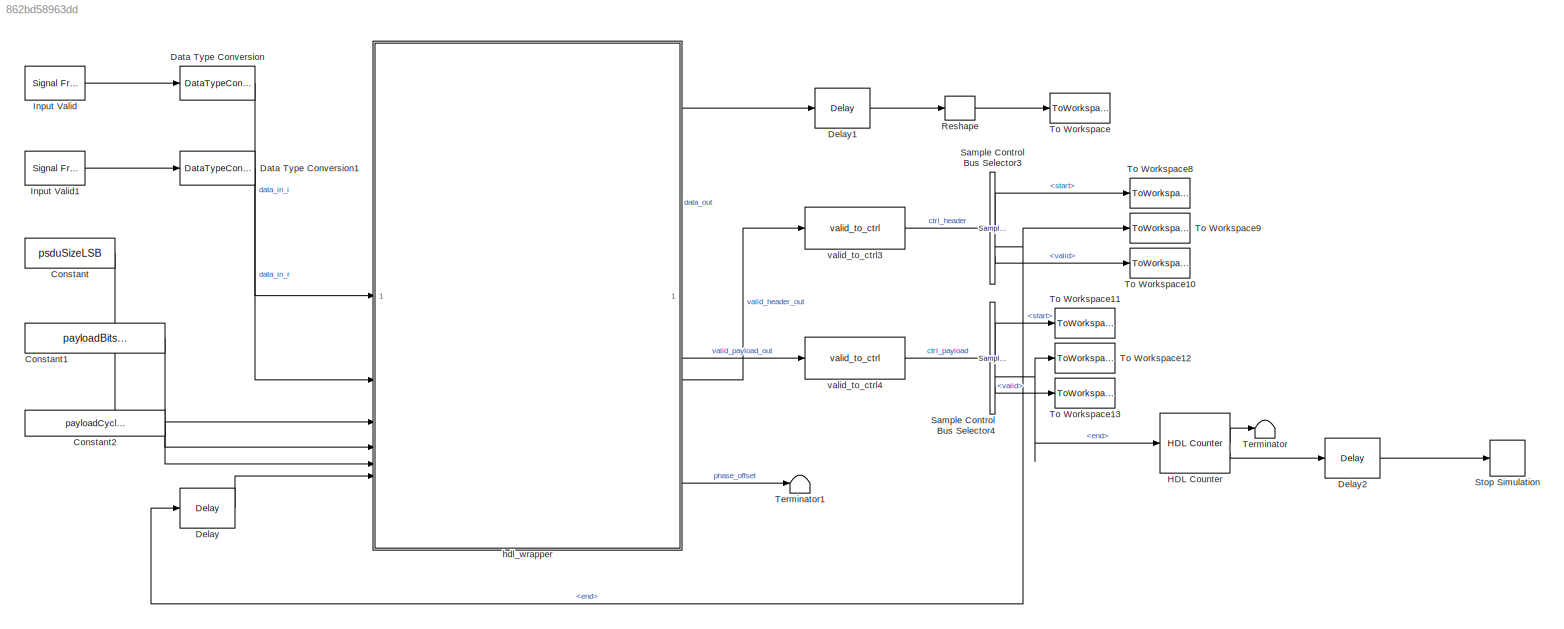
MODEL slx_862bd58963dd
KIND model
CONFIG AbsTol = auto
CONFIG EnableMultiTasking = off
CONFIG FixedStep = auto
CONFIG MaxStep = auto
CONFIG MinStep = auto
CONFIG RelTol = 1e-3
CONFIG SampleTimeConstraint = Unconstrained
CONFIG SolverName = FixedStepDiscrete
CONFIG StartTime = 0.0
CONFIG StopTime = stopTime
BLOCK [Constant] Constant
  OutDataTypeStr = boolean
  SampleTime = -1
  Value = psduSizeLSB
BLOCK [Constant] Constant1
  OutDataTypeStr = uint8
  SampleTime = -1
  Value = payloadBitsPerSubcarrierIn
BLOCK [Constant] Constant2
  OutDataTypeStr = uint8
  SampleTime = -1
  Value = payloadCyclicPrefixLenIn
BLOCK [DataTypeConversion] Data Type Conversion
  OutDataTypeStr = CONST.rxDecimatorOutputDataType
  RndMeth = Floor
  SaturateOnIntegerOverflow = off
BLOCK [DataTypeConversion] Data Type Conversion1
  OutDataTypeStr = CONST.rxDecimatorOutputDataType
  RndMeth = Floor
  SaturateOnIntegerOverflow = off
BLOCK [Delay] Delay
  DelayLength = 100
  InitialCondition = 0
  InputPortMap = u0
  UseCircularBuffer = on
  UserDataPersistent = on
BLOCK [Delay] Delay1
  DelayLength = 1
  InitialCondition = 0
  InputPortMap = u0
  UseCircularBuffer = on
  UserDataPersistent = on
BLOCK [Delay] Delay2
  DelayLength = 500
  InitialCondition = 0
  InputPortMap = u0
  UseCircularBuffer = on
  UserDataPersistent = on
BLOCK [Reference] HDL Counter  REF=hdlsllib/Sources/HDL Counter
  SourceBlock = hdlsllib/Sources/HDL Counter
  SourceType = HDL Counter
BLOCK [Reference] Input Valid  REF=dspsrcs4/Signal From
Workspace
  SourceBlock = dspsrcs4/Signal From\nWorkspace
  SourceType = Signal From Workspace
BLOCK [Reference] Input Valid1  REF=dspsrcs4/Signal From
Workspace
  SourceBlock = dspsrcs4/Signal From\nWorkspace
  SourceType = Signal From Workspace
BLOCK [Reshape] Reshape
BLOCK [Reference] Sample Control Bus Selector3  REF=whdlutilities/Sample Control
Bus Selector
  SourceBlock = whdlutilities/Sample Control\nBus Selector
BLOCK [Reference] Sample Control Bus Selector4  REF=whdlutilities/Sample Control
Bus Selector
  SourceBlock = whdlutilities/Sample Control\nBus Selector
BLOCK [Stop] Stop Simulation
BLOCK [Terminator] Terminator
BLOCK [Terminator] Terminator1
BLOCK [ToWorkspace] To Workspace
  MaxDataPoints = inf
  SampleTime = 1/CONST.fPHY
  Save2DSignal = 2-D array (concatenate along first dimension)
  VariableName = dataOut
BLOCK [ToWorkspace] To Workspace10
  MaxDataPoints = inf
  SampleTime = 1/CONST.fPHY
  Save2DSignal = 2-D array (concatenate along first dimension)
  VariableName = validOut
BLOCK [ToWorkspace] To Workspace11
  MaxDataPoints = inf
  SampleTime = 1/CONST.fPHY
  Save2DSignal = 2-D array (concatenate along first dimension)
  VariableName = startOut1
BLOCK [ToWorkspace] To Workspace12
  MaxDataPoints = inf
  SampleTime = 1/CONST.fPHY
  Save2DSignal = 2-D array (concatenate along first dimension)
  VariableName = endOut1
BLOCK [ToWorkspace] To Workspace13
  MaxDataPoints = inf
  SampleTime = 1/CONST.fPHY
  Save2DSignal = 2-D array (concatenate along first dimension)
  VariableName = validOut1
BLOCK [ToWorkspace] To Workspace8
  MaxDataPoints = inf
  SampleTime = 1/CONST.fPHY
  Save2DSignal = 2-D array (concatenate along first dimension)
  VariableName = startOut
BLOCK [ToWorkspace] To Workspace9
  MaxDataPoints = inf
  SampleTime = 1/CONST.fPHY
  Save2DSignal = 2-D array (concatenate along first dimension)
  VariableName = endOut
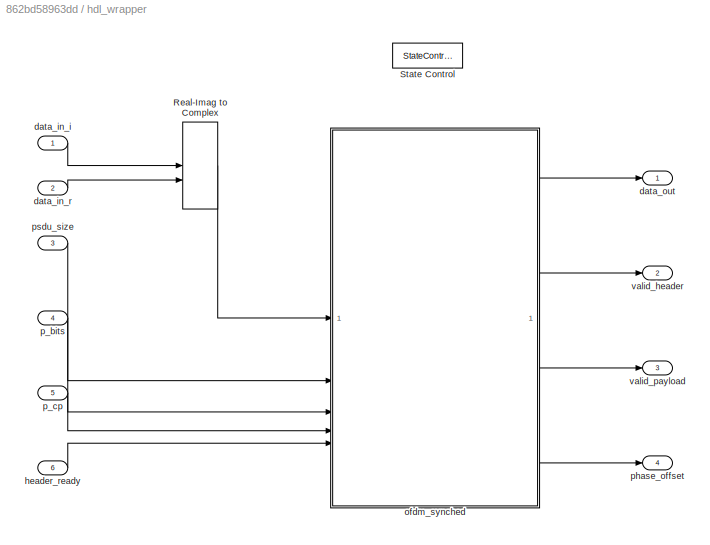
BLOCK [SubSystem] hdl_wrapper
  TreatAsAtomicUnit = on
BLOCK [RealImagToComplex] hdl_wrapper/Real-Imag to Complex
BLOCK [StateControl] hdl_wrapper/State Control
  StateControl = Synchronous
BLOCK [Inport] hdl_wrapper/data_in_i
BLOCK [Inport] hdl_wrapper/data_in_r
  Port = 2
BLOCK [Outport] hdl_wrapper/data_out
  VectorParamsAs1DForOutWhenUnconnected = off
BLOCK [Inport] hdl_wrapper/header_ready
  Port = 6
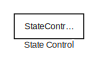
[diagram: hdl_wrapper/ofdm_synched - part 1/6, top center region]
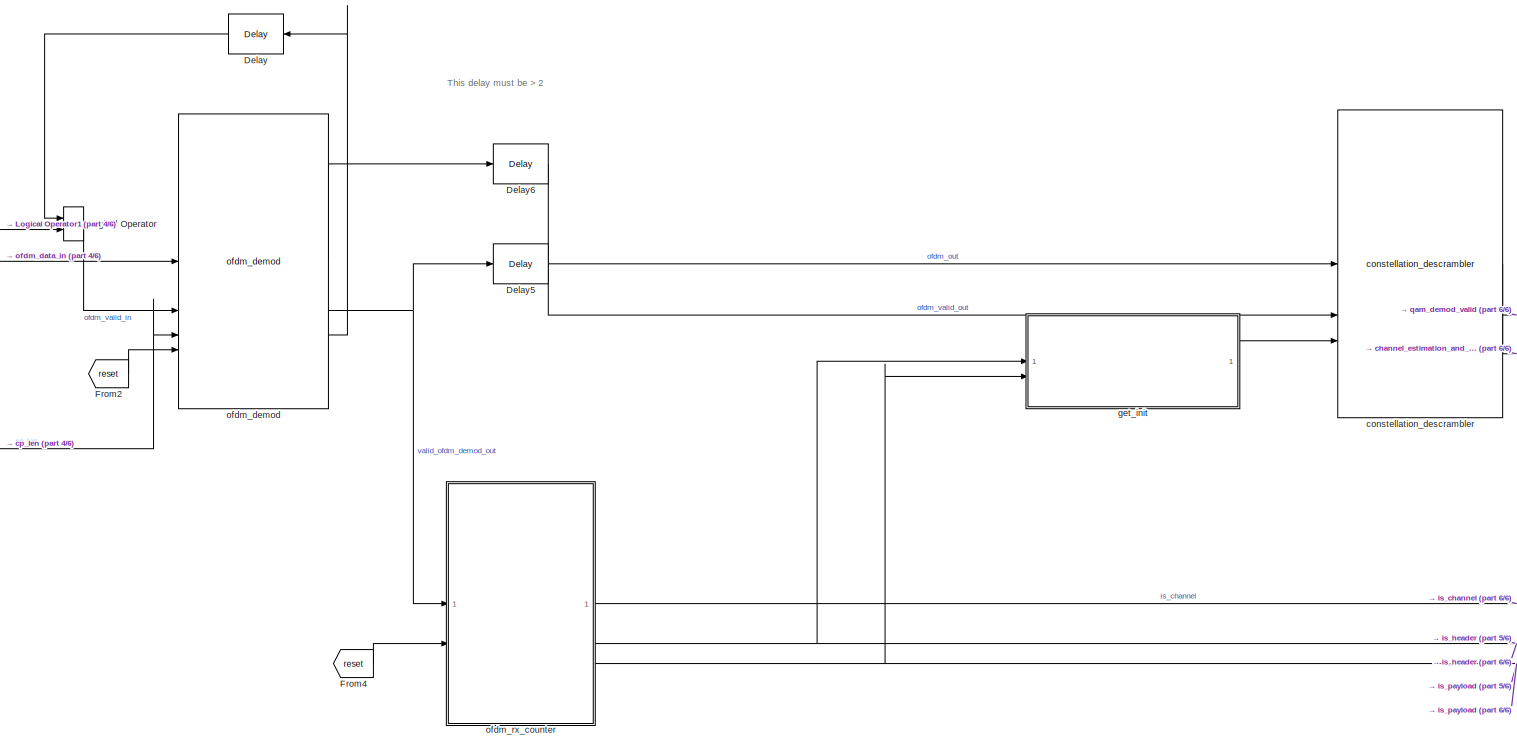
[diagram: hdl_wrapper/ofdm_synched - part 2/6, center side, full height]
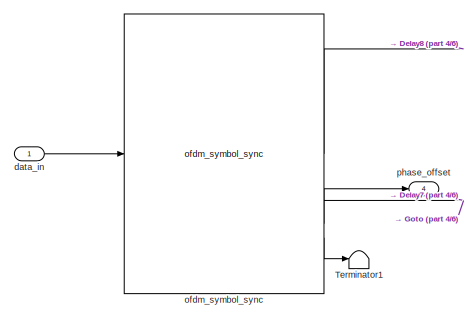
[diagram: hdl_wrapper/ofdm_synched - part 3/6, middle left region]
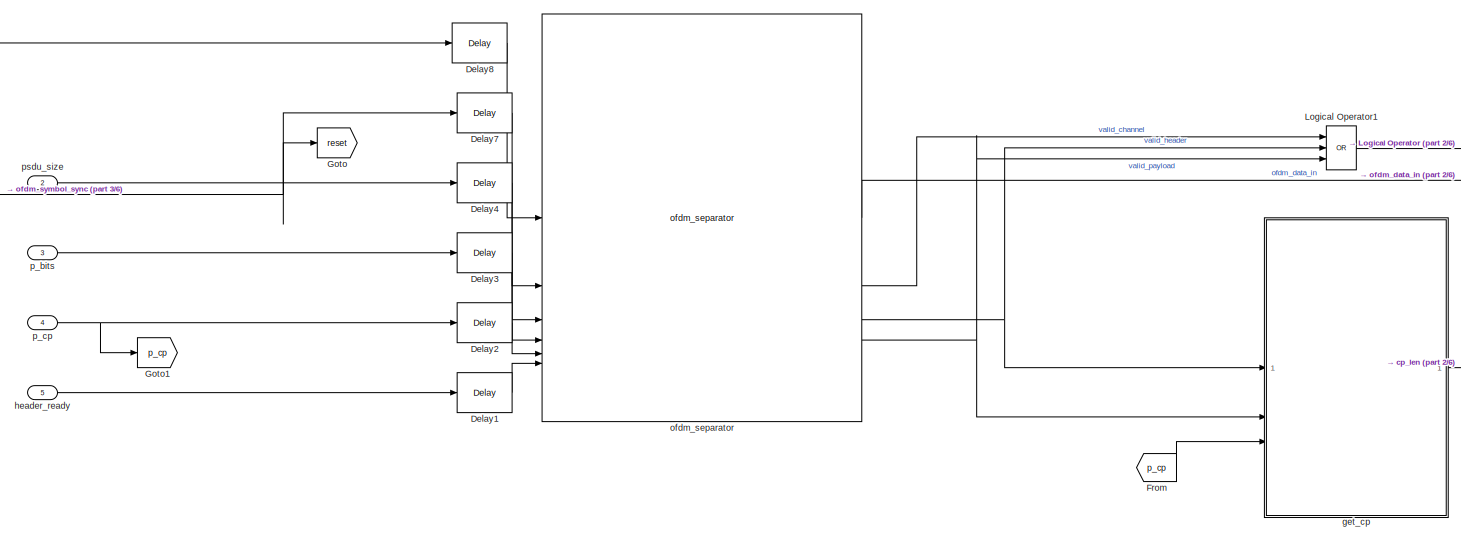
[diagram: hdl_wrapper/ofdm_synched - part 4/6, middle left region]
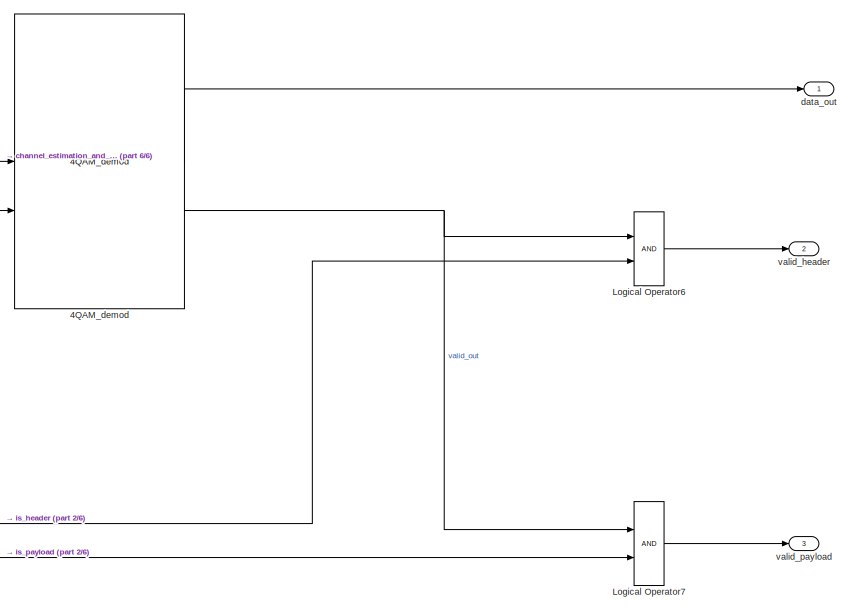
[diagram: hdl_wrapper/ofdm_synched - part 5/6, right side, full height]
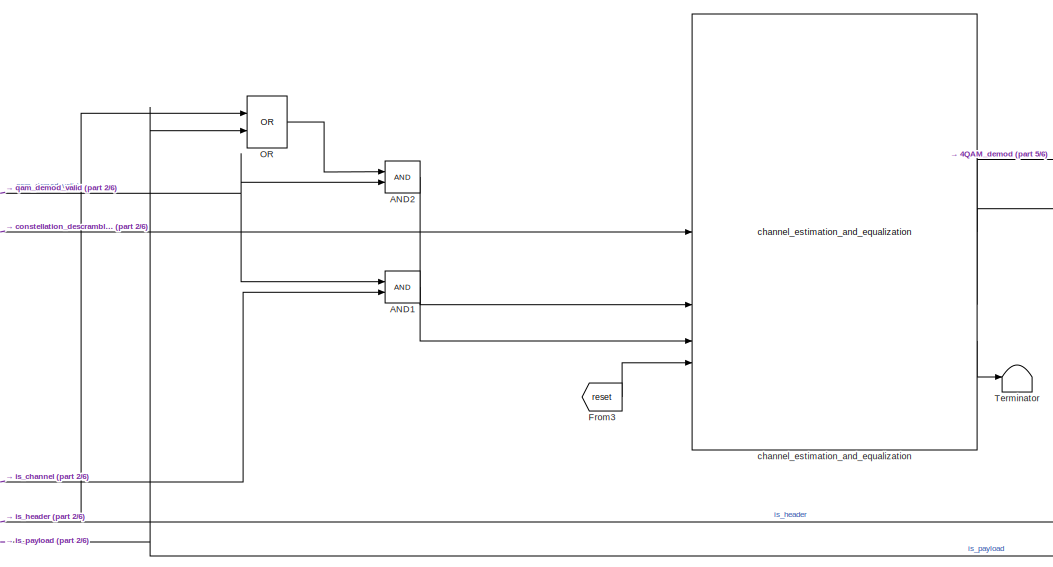
[diagram: hdl_wrapper/ofdm_synched - part 6/6, middle right region]
BLOCK [SubSystem] hdl_wrapper/ofdm_synched
BLOCK [Reference] hdl_wrapper/ofdm_synched/4QAM_demod  REF=HDL_ieee_8021513/4QAM_demod
  SourceBlock = HDL_ieee_8021513/4QAM_demod
  SourceProductName = HDL IEEE 8021513
  SourceType = SubSystem
BLOCK [Logic] hdl_wrapper/ofdm_synched/AND1
  AllPortsSameDT = off
  IconShape = distinctive
  OutDataTypeStr = boolean
BLOCK [Logic] hdl_wrapper/ofdm_synched/AND2
  AllPortsSameDT = off
  IconShape = distinctive
  NameLocation = left
  OutDataTypeStr = boolean
BLOCK [Delay] hdl_wrapper/ofdm_synched/Delay
  DelayLength = 1
  InitialCondition = 0
  InputPortMap = u0
  NameLocation = top
  UseCircularBuffer = on
  UserDataPersistent = on
BLOCK [Delay] hdl_wrapper/ofdm_synched/Delay1
  DelayLength = 1
  InitialCondition = 0
  InputPortMap = u0
  UseCircularBuffer = on
  UserDataPersistent = on
BLOCK [Delay] hdl_wrapper/ofdm_synched/Delay2
  DelayLength = 1
  InitialCondition = 0
  InputPortMap = u0
  UseCircularBuffer = on
  UserDataPersistent = on
BLOCK [Delay] hdl_wrapper/ofdm_synched/Delay3
  DelayLength = 1
  InitialCondition = 0
  InputPortMap = u0
  UseCircularBuffer = on
  UserDataPersistent = on
BLOCK [Delay] hdl_wrapper/ofdm_synched/Delay4
  DelayLength = 1
  InitialCondition = 0
  InputPortMap = u0
  UseCircularBuffer = on
  UserDataPersistent = on
BLOCK [Delay] hdl_wrapper/ofdm_synched/Delay5
  DelayLength = 5
  InitialCondition = 0
  InputPortMap = u0
  UseCircularBuffer = on
  UserDataPersistent = on
BLOCK [Delay] hdl_wrapper/ofdm_synched/Delay6
  DelayLength = 5
  InitialCondition = 0
  InputPortMap = u0
  UseCircularBuffer = on
  UserDataPersistent = on
BLOCK [Delay] hdl_wrapper/ofdm_synched/Delay7
  DelayLength = 1
  InitialCondition = 0
  InputPortMap = u0
  UseCircularBuffer = on
  UserDataPersistent = on
BLOCK [Delay] hdl_wrapper/ofdm_synched/Delay8
  DelayLength = 1
  InitialCondition = 0
  InputPortMap = u0
  UseCircularBuffer = on
  UserDataPersistent = on
BLOCK [From] hdl_wrapper/ofdm_synched/From
  GotoTag = p_cp
BLOCK [From] hdl_wrapper/ofdm_synched/From2
  GotoTag = reset
BLOCK [From] hdl_wrapper/ofdm_synched/From3
  GotoTag = reset
BLOCK [From] hdl_wrapper/ofdm_synched/From4
  GotoTag = reset
BLOCK [Goto] hdl_wrapper/ofdm_synched/Goto
  GotoTag = reset
BLOCK [Goto] hdl_wrapper/ofdm_synched/Goto1
  GotoTag = p_cp
BLOCK [Logic] hdl_wrapper/ofdm_synched/Logical Operator
  AllPortsSameDT = off
  IconShape = distinctive
  OutDataTypeStr = boolean
BLOCK [Logic] hdl_wrapper/ofdm_synched/Logical Operator1
  AllPortsSameDT = off
  IconShape = distinctive
  Inputs = 3
  Operator = OR
  OutDataTypeStr = boolean
BLOCK [Logic] hdl_wrapper/ofdm_synched/Logical Operator6
  AllPortsSameDT = off
  IconShape = distinctive
  OutDataTypeStr = boolean
BLOCK [Logic] hdl_wrapper/ofdm_synched/Logical Operator7
  AllPortsSameDT = off
  IconShape = distinctive
  OutDataTypeStr = boolean
BLOCK [Logic] hdl_wrapper/ofdm_synched/OR
  AllPortsSameDT = off
  IconShape = distinctive
  Operator = OR
  OutDataTypeStr = boolean
BLOCK [StateControl] hdl_wrapper/ofdm_synched/State Control
  StateControl = Synchronous
BLOCK [Terminator] hdl_wrapper/ofdm_synched/Terminator
BLOCK [Terminator] hdl_wrapper/ofdm_synched/Terminator1
BLOCK [Reference] hdl_wrapper/ofdm_synched/channel_estimation_and_equalization  REF=HDL_ieee_8021513/channel_estimation_and_equalization
  SourceBlock = HDL_ieee_8021513/channel_estimation_and_equalization
  SourceProductName = HDL IEEE 8021513
  SourceType = SubSystem
BLOCK [Reference] hdl_wrapper/ofdm_synched/constellation_descrambler  REF=HDL_ieee_8021513/constellation_descrambler
  SourceBlock = HDL_ieee_8021513/constellation_descrambler
  SourceProductName = HDL IEEE 8021513
  SourceType = SubSystem
BLOCK [Inport] hdl_wrapper/ofdm_synched/data_in
BLOCK [Outport] hdl_wrapper/ofdm_synched/data_out
  VectorParamsAs1DForOutWhenUnconnected = off
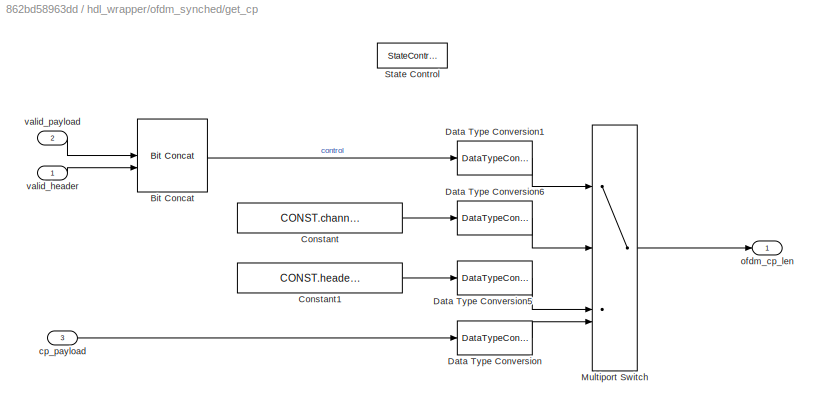
BLOCK [SubSystem] hdl_wrapper/ofdm_synched/get_cp
BLOCK [Reference] hdl_wrapper/ofdm_synched/get_cp/Bit Concat  REF=hdlsllib/Logic and Bit
Operations/Bit Concat
  SourceBlock = hdlsllib/Logic and Bit\nOperations/Bit Concat
  SourceType = Bit Concat
BLOCK [Constant] hdl_wrapper/ofdm_synched/get_cp/Constant
  OutDataTypeStr = uint8
  SampleTime = -1
  Value = CONST.channelCyclicPrefixLen
BLOCK [Constant] hdl_wrapper/ofdm_synched/get_cp/Constant1
  OutDataTypeStr = uint8
  SampleTime = -1
  Value = CONST.headerCyclicPrefixLen
BLOCK [DataTypeConversion] hdl_wrapper/ofdm_synched/get_cp/Data Type Conversion
  OutDataTypeStr = uint8
  RndMeth = Floor
  SaturateOnIntegerOverflow = off
BLOCK [DataTypeConversion] hdl_wrapper/ofdm_synched/get_cp/Data Type Conversion1
  OutDataTypeStr = fixdt(0,2,0)
  RndMeth = Floor
  SaturateOnIntegerOverflow = off
BLOCK [DataTypeConversion] hdl_wrapper/ofdm_synched/get_cp/Data Type Conversion5
  OutDataTypeStr = uint8
  RndMeth = Floor
  SaturateOnIntegerOverflow = off
BLOCK [DataTypeConversion] hdl_wrapper/ofdm_synched/get_cp/Data Type Conversion6
  OutDataTypeStr = uint8
  RndMeth = Floor
  SaturateOnIntegerOverflow = off
BLOCK [MultiPortSwitch] hdl_wrapper/ofdm_synched/get_cp/Multiport Switch
  DataPortOrder = Zero-based contiguous
  SaturateOnIntegerOverflow = off
  zeroidx = on
BLOCK [StateControl] hdl_wrapper/ofdm_synched/get_cp/State Control
  StateControl = Synchronous
BLOCK [Inport] hdl_wrapper/ofdm_synched/get_cp/cp_payload
  Port = 3
BLOCK [Outport] hdl_wrapper/ofdm_synched/get_cp/ofdm_cp_len
BLOCK [Inport] hdl_wrapper/ofdm_synched/get_cp/valid_header
BLOCK [Inport] hdl_wrapper/ofdm_synched/get_cp/valid_payload
  Port = 2
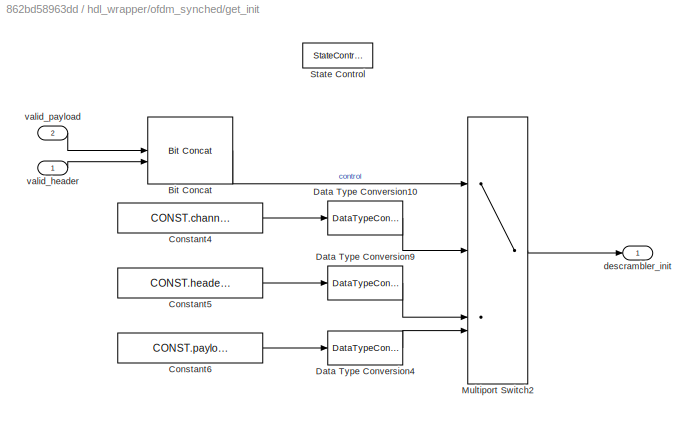
BLOCK [SubSystem] hdl_wrapper/ofdm_synched/get_init
BLOCK [Reference] hdl_wrapper/ofdm_synched/get_init/Bit Concat  REF=hdlsllib/Logic and Bit
Operations/Bit Concat
  SourceBlock = hdlsllib/Logic and Bit\nOperations/Bit Concat
  SourceType = Bit Concat
BLOCK [Constant] hdl_wrapper/ofdm_synched/get_init/Constant4
  OutDataTypeStr = uint8
  SampleTime = -1
  Value = CONST.channelScramblerInit
BLOCK [Constant] hdl_wrapper/ofdm_synched/get_init/Constant5
  OutDataTypeStr = uint8
  SampleTime = -1
  Value = CONST.headerScramblerInit
BLOCK [Constant] hdl_wrapper/ofdm_synched/get_init/Constant6
  OutDataTypeStr = uint8
  SampleTime = -1
  Value = CONST.payloadScramblerInit
BLOCK [DataTypeConversion] hdl_wrapper/ofdm_synched/get_init/Data Type Conversion10
  OutDataTypeStr = boolean
  RndMeth = Floor
  SaturateOnIntegerOverflow = off
BLOCK [DataTypeConversion] hdl_wrapper/ofdm_synched/get_init/Data Type Conversion4
  OutDataTypeStr = boolean
  RndMeth = Floor
  SaturateOnIntegerOverflow = off
BLOCK [DataTypeConversion] hdl_wrapper/ofdm_synched/get_init/Data Type Conversion9
  OutDataTypeStr = boolean
  RndMeth = Floor
  SaturateOnIntegerOverflow = off
BLOCK [MultiPortSwitch] hdl_wrapper/ofdm_synched/get_init/Multiport Switch2
  DataPortOrder = Zero-based contiguous
  InputSameDT = off
  SaturateOnIntegerOverflow = off
  zeroidx = on
BLOCK [StateControl] hdl_wrapper/ofdm_synched/get_init/State Control
  StateControl = Synchronous
BLOCK [Outport] hdl_wrapper/ofdm_synched/get_init/descrambler_init
BLOCK [Inport] hdl_wrapper/ofdm_synched/get_init/valid_header
BLOCK [Inport] hdl_wrapper/ofdm_synched/get_init/valid_payload
  Port = 2
BLOCK [Inport] hdl_wrapper/ofdm_synched/header_ready
  Port = 5
BLOCK [Reference] hdl_wrapper/ofdm_synched/ofdm_demod  REF=HDL_ieee_8021513/ofdm_demod
  SourceBlock = HDL_ieee_8021513/ofdm_demod
  SourceProductName = HDL IEEE 8021513
  SourceType = SubSystem
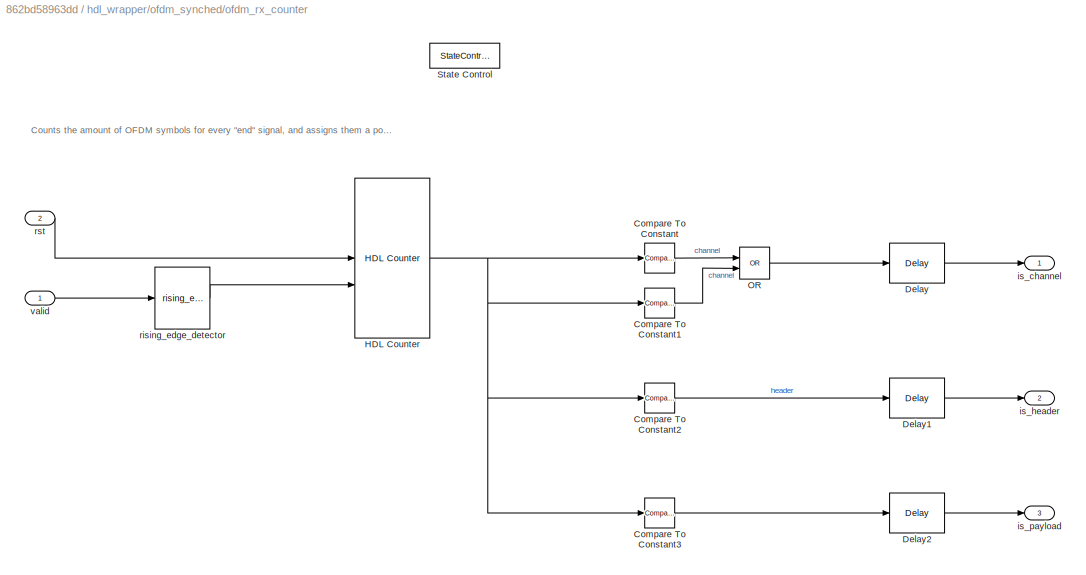
BLOCK [SubSystem] hdl_wrapper/ofdm_synched/ofdm_rx_counter
BLOCK [Reference] hdl_wrapper/ofdm_synched/ofdm_rx_counter/Compare To Constant  REF=hdlsllib/Logic and Bit
Operations/Compare
To Constant
  SourceBlock = hdlsllib/Logic and Bit\nOperations/Compare\nTo Constant
  SourceType = Compare To Constant
BLOCK [Reference] hdl_wrapper/ofdm_synched/ofdm_rx_counter/Compare To Constant1  REF=hdlsllib/Logic and Bit
Operations/Compare
To Constant
  SourceBlock = hdlsllib/Logic and Bit\nOperations/Compare\nTo Constant
  SourceType = Compare To Constant
BLOCK [Reference] hdl_wrapper/ofdm_synched/ofdm_rx_counter/Compare To Constant2  REF=hdlsllib/Logic and Bit
Operations/Compare
To Constant
  SourceBlock = hdlsllib/Logic and Bit\nOperations/Compare\nTo Constant
  SourceType = Compare To Constant
BLOCK [Reference] hdl_wrapper/ofdm_synched/ofdm_rx_counter/Compare To Constant3  REF=hdlsllib/Logic and Bit
Operations/Compare
To Constant
  SourceBlock = hdlsllib/Logic and Bit\nOperations/Compare\nTo Constant
  SourceType = Compare To Constant
BLOCK [Delay] hdl_wrapper/ofdm_synched/ofdm_rx_counter/Delay
  DelayLength = 1
  InitialCondition = 0
  InputPortMap = u0
  UseCircularBuffer = on
  UserDataPersistent = on
BLOCK [Delay] hdl_wrapper/ofdm_synched/ofdm_rx_counter/Delay1
  DelayLength = 1
  InitialCondition = 0
  InputPortMap = u0
  UseCircularBuffer = on
  UserDataPersistent = on
BLOCK [Delay] hdl_wrapper/ofdm_synched/ofdm_rx_counter/Delay2
  DelayLength = 1
  InitialCondition = 0
  InputPortMap = u0
  UseCircularBuffer = on
  UserDataPersistent = on
BLOCK [Reference] hdl_wrapper/ofdm_synched/ofdm_rx_counter/HDL Counter  REF=hdlsllib/Sources/HDL Counter
  SourceBlock = hdlsllib/Sources/HDL Counter
  SourceType = HDL Counter
BLOCK [Logic] hdl_wrapper/ofdm_synched/ofdm_rx_counter/OR
  AllPortsSameDT = off
  IconShape = distinctive
  Operator = OR
  OutDataTypeStr = boolean
BLOCK [StateControl] hdl_wrapper/ofdm_synched/ofdm_rx_counter/State Control
  StateControl = Synchronous
BLOCK [Outport] hdl_wrapper/ofdm_synched/ofdm_rx_counter/is_channel
BLOCK [Outport] hdl_wrapper/ofdm_synched/ofdm_rx_counter/is_header
  Port = 2
BLOCK [Outport] hdl_wrapper/ofdm_synched/ofdm_rx_counter/is_payload
  Port = 3
BLOCK [Reference] hdl_wrapper/ofdm_synched/ofdm_rx_counter/rising_edge_detector  REF=HDL_ieee_8021513/rising_edge_detector
  SourceBlock = HDL_ieee_8021513/rising_edge_detector
  SourceProductName = HDL IEEE 8021513
  SourceType = SubSystem
BLOCK [Inport] hdl_wrapper/ofdm_synched/ofdm_rx_counter/rst
  Port = 2
BLOCK [Inport] hdl_wrapper/ofdm_synched/ofdm_rx_counter/valid
BLOCK [Reference] hdl_wrapper/ofdm_synched/ofdm_separator  REF=HDL_ieee_8021513/ofdm_separator
  SourceBlock = HDL_ieee_8021513/ofdm_separator
  SourceProductName = HDL IEEE 8021513
  SourceType = SubSystem
BLOCK [Reference] hdl_wrapper/ofdm_synched/ofdm_symbol_sync  REF=HDL_ieee_8021513/ofdm_symbol_sync
  SourceBlock = HDL_ieee_8021513/ofdm_symbol_sync
  SourceProductName = HDL IEEE 8021513
  SourceType = SubSystem
BLOCK [Inport] hdl_wrapper/ofdm_synched/p_bits
  Port = 3
BLOCK [Inport] hdl_wrapper/ofdm_synched/p_cp
  Port = 4
BLOCK [Outport] hdl_wrapper/ofdm_synched/phase_offset
  Port = 4
  VectorParamsAs1DForOutWhenUnconnected = off
BLOCK [Inport] hdl_wrapper/ofdm_synched/psdu_size
  Port = 2
BLOCK [Outport] hdl_wrapper/ofdm_synched/valid_header
  Port = 2
  VectorParamsAs1DForOutWhenUnconnected = off
BLOCK [Outport] hdl_wrapper/ofdm_synched/valid_payload
  Port = 3
  VectorParamsAs1DForOutWhenUnconnected = off
BLOCK [Inport] hdl_wrapper/p_bits
  Port = 4
BLOCK [Inport] hdl_wrapper/p_cp
  Port = 5
BLOCK [Outport] hdl_wrapper/phase_offset
  Port = 4
  VectorParamsAs1DForOutWhenUnconnected = off
BLOCK [Inport] hdl_wrapper/psdu_size
  Port = 3
BLOCK [Outport] hdl_wrapper/valid_header
  Port = 2
  VectorParamsAs1DForOutWhenUnconnected = off
BLOCK [Outport] hdl_wrapper/valid_payload
  Port = 3
  VectorParamsAs1DForOutWhenUnconnected = off
BLOCK [Reference] valid_to_ctrl3  REF=HDL_ieee_8021513/valid_to_ctrl
  SourceBlock = HDL_ieee_8021513/valid_to_ctrl
  SourceProductName = HDL IEEE 8021513
  SourceType = SubSystem
BLOCK [Reference] valid_to_ctrl4  REF=HDL_ieee_8021513/valid_to_ctrl
  SourceBlock = HDL_ieee_8021513/valid_to_ctrl
  SourceProductName = HDL IEEE 8021513
  SourceType = SubSystem
ANNOTATION hdl_wrapper/ofdm_synched: This delay must be > 2
ANNOTATION hdl_wrapper/ofdm_synched/ofdm_rx_counter: Counts the amount of OFDM symbols for every "end" signal, and assigns them a position (preamble, channel, header, payload)
LINE Constant1:1 -> hdl_wrapper:4
LINE Constant2:1 -> hdl_wrapper:5
LINE Constant:1 -> hdl_wrapper:3
LINE Data Type Conversion1:1 -> hdl_wrapper:2
LINE Data Type Conversion:1 -> hdl_wrapper:1
LINE Delay1:1 -> Reshape:1
LINE Delay2:1 -> Stop Simulation:1
LINE Delay:1 -> hdl_wrapper:6
LINE HDL Counter:1 -> Terminator:1
LINE HDL Counter:2 -> Delay2:1
LINE Input Valid1:1 -> Data Type Conversion1:1
LINE Input Valid:1 -> Data Type Conversion:1
LINE Reshape:1 -> To Workspace:1
LINE Sample Control Bus Selector3:1 -> To Workspace8:1
NET Sample Control Bus Selector3:2 -> Delay:1, To Workspace9:1
LINE Sample Control Bus Selector3:3 -> To Workspace10:1
LINE Sample Control Bus Selector4:1 -> To Workspace11:1
NET Sample Control Bus Selector4:2 -> HDL Counter:1, To Workspace12:1
LINE Sample Control Bus Selector4:3 -> To Workspace13:1
LINE hdl_wrapper/Real-Imag to Complex:1 -> hdl_wrapper/ofdm_synched:1
LINE hdl_wrapper/data_in_i:1 -> hdl_wrapper/Real-Imag to Complex:1
LINE hdl_wrapper/data_in_r:1 -> hdl_wrapper/Real-Imag to Complex:2
LINE hdl_wrapper/header_ready:1 -> hdl_wrapper/ofdm_synched:5
LINE hdl_wrapper/ofdm_synched/4QAM_demod:1 -> hdl_wrapper/ofdm_synched/data_out:1
NET hdl_wrapper/ofdm_synched/4QAM_demod:2 -> hdl_wrapper/ofdm_synched/Logical Operator6:1, hdl_wrapper/ofdm_synched/Logical Operator7:1
LINE hdl_wrapper/ofdm_synched/AND1:1 -> hdl_wrapper/ofdm_synched/channel_estimation_and_equalization:3
LINE hdl_wrapper/ofdm_synched/AND2:1 -> hdl_wrapper/ofdm_synched/channel_estimation_and_equalization:2
LINE hdl_wrapper/ofdm_synched/Delay1:1 -> hdl_wrapper/ofdm_synched/ofdm_separator:6
LINE hdl_wrapper/ofdm_synched/Delay2:1 -> hdl_wrapper/ofdm_synched/ofdm_separator:5
LINE hdl_wrapper/ofdm_synched/Delay3:1 -> hdl_wrapper/ofdm_synched/ofdm_separator:4
LINE hdl_wrapper/ofdm_synched/Delay4:1 -> hdl_wrapper/ofdm_synched/ofdm_separator:3
LINE hdl_wrapper/ofdm_synched/Delay5:1 -> hdl_wrapper/ofdm_synched/constellation_descrambler:2
LINE hdl_wrapper/ofdm_synched/Delay6:1 -> hdl_wrapper/ofdm_synched/constellation_descrambler:1
LINE hdl_wrapper/ofdm_synched/Delay7:1 -> hdl_wrapper/ofdm_synched/ofdm_separator:2
LINE hdl_wrapper/ofdm_synched/Delay8:1 -> hdl_wrapper/ofdm_synched/ofdm_separator:1
LINE hdl_wrapper/ofdm_synched/Delay:1 -> hdl_wrapper/ofdm_synched/Logical Operator:1
LINE hdl_wrapper/ofdm_synched/From2:1 -> hdl_wrapper/ofdm_synched/ofdm_demod:4
LINE hdl_wrapper/ofdm_synched/From3:1 -> hdl_wrapper/ofdm_synched/channel_estimation_and_equalization:4
LINE hdl_wrapper/ofdm_synched/From4:1 -> hdl_wrapper/ofdm_synched/ofdm_rx_counter:2
LINE hdl_wrapper/ofdm_synched/From:1 -> hdl_wrapper/ofdm_synched/get_cp:3
LINE hdl_wrapper/ofdm_synched/Logical Operator1:1 -> hdl_wrapper/ofdm_synched/Logical Operator:2
LINE hdl_wrapper/ofdm_synched/Logical Operator6:1 -> hdl_wrapper/ofdm_synched/valid_header:1
LINE hdl_wrapper/ofdm_synched/Logical Operator7:1 -> hdl_wrapper/ofdm_synched/valid_payload:1
LINE hdl_wrapper/ofdm_synched/Logical Operator:1 -> hdl_wrapper/ofdm_synched/ofdm_demod:2
LINE hdl_wrapper/ofdm_synched/OR:1 -> hdl_wrapper/ofdm_synched/AND2:1
LINE hdl_wrapper/ofdm_synched/channel_estimation_and_equalization:1 -> hdl_wrapper/ofdm_synched/4QAM_demod:1
LINE hdl_wrapper/ofdm_synched/channel_estimation_and_equalization:2 -> hdl_wrapper/ofdm_synched/4QAM_demod:2
LINE hdl_wrapper/ofdm_synched/channel_estimation_and_equalization:3 -> hdl_wrapper/ofdm_synched/Terminator:1
LINE hdl_wrapper/ofdm_synched/constellation_descrambler:1 -> hdl_wrapper/ofdm_synched/channel_estimation_and_equalization:1
NET hdl_wrapper/ofdm_synched/constellation_descrambler:2 -> hdl_wrapper/ofdm_synched/AND1:1, hdl_wrapper/ofdm_synched/AND2:2
LINE hdl_wrapper/ofdm_synched/data_in:1 -> hdl_wrapper/ofdm_synched/ofdm_symbol_sync:1
LINE hdl_wrapper/ofdm_synched/get_cp/Bit Concat:1 -> hdl_wrapper/ofdm_synched/get_cp/Data Type Conversion1:1
LINE hdl_wrapper/ofdm_synched/get_cp/Constant1:1 -> hdl_wrapper/ofdm_synched/get_cp/Data Type Conversion5:1
LINE hdl_wrapper/ofdm_synched/get_cp/Constant:1 -> hdl_wrapper/ofdm_synched/get_cp/Data Type Conversion6:1
LINE hdl_wrapper/ofdm_synched/get_cp/Data Type Conversion1:1 -> hdl_wrapper/ofdm_synched/get_cp/Multiport Switch:1
LINE hdl_wrapper/ofdm_synched/get_cp/Data Type Conversion5:1 -> hdl_wrapper/ofdm_synched/get_cp/Multiport Switch:3
LINE hdl_wrapper/ofdm_synched/get_cp/Data Type Conversion6:1 -> hdl_wrapper/ofdm_synched/get_cp/Multiport Switch:2
LINE hdl_wrapper/ofdm_synched/get_cp/Data Type Conversion:1 -> hdl_wrapper/ofdm_synched/get_cp/Multiport Switch:4
LINE hdl_wrapper/ofdm_synched/get_cp/Multiport Switch:1 -> hdl_wrapper/ofdm_synched/get_cp/ofdm_cp_len:1
LINE hdl_wrapper/ofdm_synched/get_cp/cp_payload:1 -> hdl_wrapper/ofdm_synched/get_cp/Data Type Conversion:1
LINE hdl_wrapper/ofdm_synched/get_cp/valid_header:1 -> hdl_wrapper/ofdm_synched/get_cp/Bit Concat:2
LINE hdl_wrapper/ofdm_synched/get_cp/valid_payload:1 -> hdl_wrapper/ofdm_synched/get_cp/Bit Concat:1
LINE hdl_wrapper/ofdm_synched/get_cp:1 -> hdl_wrapper/ofdm_synched/ofdm_demod:3
LINE hdl_wrapper/ofdm_synched/get_init/Bit Concat:1 -> hdl_wrapper/ofdm_synched/get_init/Multiport Switch2:1
LINE hdl_wrapper/ofdm_synched/get_init/Constant4:1 -> hdl_wrapper/ofdm_synched/get_init/Data Type Conversion10:1
LINE hdl_wrapper/ofdm_synched/get_init/Constant5:1 -> hdl_wrapper/ofdm_synched/get_init/Data Type Conversion9:1
LINE hdl_wrapper/ofdm_synched/get_init/Constant6:1 -> hdl_wrapper/ofdm_synched/get_init/Data Type Conversion4:1
LINE hdl_wrapper/ofdm_synched/get_init/Data Type Conversion10:1 -> hdl_wrapper/ofdm_synched/get_init/Multiport Switch2:2
LINE hdl_wrapper/ofdm_synched/get_init/Data Type Conversion4:1 -> hdl_wrapper/ofdm_synched/get_init/Multiport Switch2:4
LINE hdl_wrapper/ofdm_synched/get_init/Data Type Conversion9:1 -> hdl_wrapper/ofdm_synched/get_init/Multiport Switch2:3
LINE hdl_wrapper/ofdm_synched/get_init/Multiport Switch2:1 -> hdl_wrapper/ofdm_synched/get_init/descrambler_init:1
LINE hdl_wrapper/ofdm_synched/get_init/valid_header:1 -> hdl_wrapper/ofdm_synched/get_init/Bit Concat:2
LINE hdl_wrapper/ofdm_synched/get_init/valid_payload:1 -> hdl_wrapper/ofdm_synched/get_init/Bit Concat:1
LINE hdl_wrapper/ofdm_synched/get_init:1 -> hdl_wrapper/ofdm_synched/constellation_descrambler:3
LINE hdl_wrapper/ofdm_synched/header_ready:1 -> hdl_wrapper/ofdm_synched/Delay1:1
LINE hdl_wrapper/ofdm_synched/ofdm_demod:1 -> hdl_wrapper/ofdm_synched/Delay6:1
NET hdl_wrapper/ofdm_synched/ofdm_demod:2 -> hdl_wrapper/ofdm_synched/Delay5:1, hdl_wrapper/ofdm_synched/ofdm_rx_counter:1
LINE hdl_wrapper/ofdm_synched/ofdm_demod:3 -> hdl_wrapper/ofdm_synched/Delay:1
LINE hdl_wrapper/ofdm_synched/ofdm_rx_counter/Compare To Constant1:1 -> hdl_wrapper/ofdm_synched/ofdm_rx_counter/OR:2
LINE hdl_wrapper/ofdm_synched/ofdm_rx_counter/Compare To Constant2:1 -> hdl_wrapper/ofdm_synched/ofdm_rx_counter/Delay1:1
LINE hdl_wrapper/ofdm_synched/ofdm_rx_counter/Compare To Constant3:1 -> hdl_wrapper/ofdm_synched/ofdm_rx_counter/Delay2:1
LINE hdl_wrapper/ofdm_synched/ofdm_rx_counter/Compare To Constant:1 -> hdl_wrapper/ofdm_synched/ofdm_rx_counter/OR:1
LINE hdl_wrapper/ofdm_synched/ofdm_rx_counter/Delay1:1 -> hdl_wrapper/ofdm_synched/ofdm_rx_counter/is_header:1
LINE hdl_wrapper/ofdm_synched/ofdm_rx_counter/Delay2:1 -> hdl_wrapper/ofdm_synched/ofdm_rx_counter/is_payload:1
LINE hdl_wrapper/ofdm_synched/ofdm_rx_counter/Delay:1 -> hdl_wrapper/ofdm_synched/ofdm_rx_counter/is_channel:1
NET hdl_wrapper/ofdm_synched/ofdm_rx_counter/HDL Counter:1 -> hdl_wrapper/ofdm_synched/ofdm_rx_counter/Compare To Constant1:1, hdl_wrapper/ofdm_synched/ofdm_rx_counter/Compare To Constant2:1, hdl_wrapper/ofdm_synched/ofdm_rx_counter/Compare To Constant3:1, hdl_wrapper/ofdm_synched/ofdm_rx_counter/Compare To Constant:1
LINE hdl_wrapper/ofdm_synched/ofdm_rx_counter/OR:1 -> hdl_wrapper/ofdm_synched/ofdm_rx_counter/Delay:1
LINE hdl_wrapper/ofdm_synched/ofdm_rx_counter/rising_edge_detector:1 -> hdl_wrapper/ofdm_synched/ofdm_rx_counter/HDL Counter:2
LINE hdl_wrapper/ofdm_synched/ofdm_rx_counter/rst:1 -> hdl_wrapper/ofdm_synched/ofdm_rx_counter/HDL Counter:1
LINE hdl_wrapper/ofdm_synched/ofdm_rx_counter/valid:1 -> hdl_wrapper/ofdm_synched/ofdm_rx_counter/rising_edge_detector:1
LINE hdl_wrapper/ofdm_synched/ofdm_rx_counter:1 -> hdl_wrapper/ofdm_synched/AND1:2
NET hdl_wrapper/ofdm_synched/ofdm_rx_counter:2 -> hdl_wrapper/ofdm_synched/Logical Operator6:2, hdl_wrapper/ofdm_synched/OR:1, hdl_wrapper/ofdm_synched/get_init:1
NET hdl_wrapper/ofdm_synched/ofdm_rx_counter:3 -> hdl_wrapper/ofdm_synched/Logical Operator7:2, hdl_wrapper/ofdm_synched/OR:2, hdl_wrapper/ofdm_synched/get_init:2
LINE hdl_wrapper/ofdm_synched/ofdm_separator:1 -> hdl_wrapper/ofdm_synched/ofdm_demod:1
LINE hdl_wrapper/ofdm_synched/ofdm_separator:2 -> hdl_wrapper/ofdm_synched/Logical Operator1:1
NET hdl_wrapper/ofdm_synched/ofdm_separator:3 -> hdl_wrapper/ofdm_synched/Logical Operator1:2, hdl_wrapper/ofdm_synched/get_cp:1
NET hdl_wrapper/ofdm_synched/ofdm_separator:4 -> hdl_wrapper/ofdm_synched/Logical Operator1:3, hdl_wrapper/ofdm_synched/get_cp:2
LINE hdl_wrapper/ofdm_synched/ofdm_symbol_sync:1 -> hdl_wrapper/ofdm_synched/Delay8:1
NET hdl_wrapper/ofdm_synched/ofdm_symbol_sync:2 -> hdl_wrapper/ofdm_synched/Delay7:1, hdl_wrapper/ofdm_synched/Goto:1
LINE hdl_wrapper/ofdm_synched/ofdm_symbol_sync:3 -> hdl_wrapper/ofdm_synched/phase_offset:1
LINE hdl_wrapper/ofdm_synched/ofdm_symbol_sync:4 -> hdl_wrapper/ofdm_synched/Terminator1:1
LINE hdl_wrapper/ofdm_synched/p_bits:1 -> hdl_wrapper/ofdm_synched/Delay3:1
NET hdl_wrapper/ofdm_synched/p_cp:1 -> hdl_wrapper/ofdm_synched/Delay2:1, hdl_wrapper/ofdm_synched/Goto1:1
LINE hdl_wrapper/ofdm_synched/psdu_size:1 -> hdl_wrapper/ofdm_synched/Delay4:1
LINE hdl_wrapper/ofdm_synched:1 -> hdl_wrapper/data_out:1
LINE hdl_wrapper/ofdm_synched:2 -> hdl_wrapper/valid_header:1
LINE hdl_wrapper/ofdm_synched:3 -> hdl_wrapper/valid_payload:1
LINE hdl_wrapper/ofdm_synched:4 -> hdl_wrapper/phase_offset:1
LINE hdl_wrapper/p_bits:1 -> hdl_wrapper/ofdm_synched:3
LINE hdl_wrapper/p_cp:1 -> hdl_wrapper/ofdm_synched:4
LINE hdl_wrapper/psdu_size:1 -> hdl_wrapper/ofdm_synched:2
LINE hdl_wrapper:1 -> Delay1:1
LINE hdl_wrapper:2 -> valid_to_ctrl3:1
LINE hdl_wrapper:3 -> valid_to_ctrl4:1
LINE hdl_wrapper:4 -> Terminator1:1
LINE valid_to_ctrl3:1 -> Sample Control Bus Selector3:1
LINE valid_to_ctrl4:1 -> Sample Control Bus Selector4:1
note: NET lines group one-source signal fan-out (src -> all destinations, sorted); 1:1 wires keep LINE
